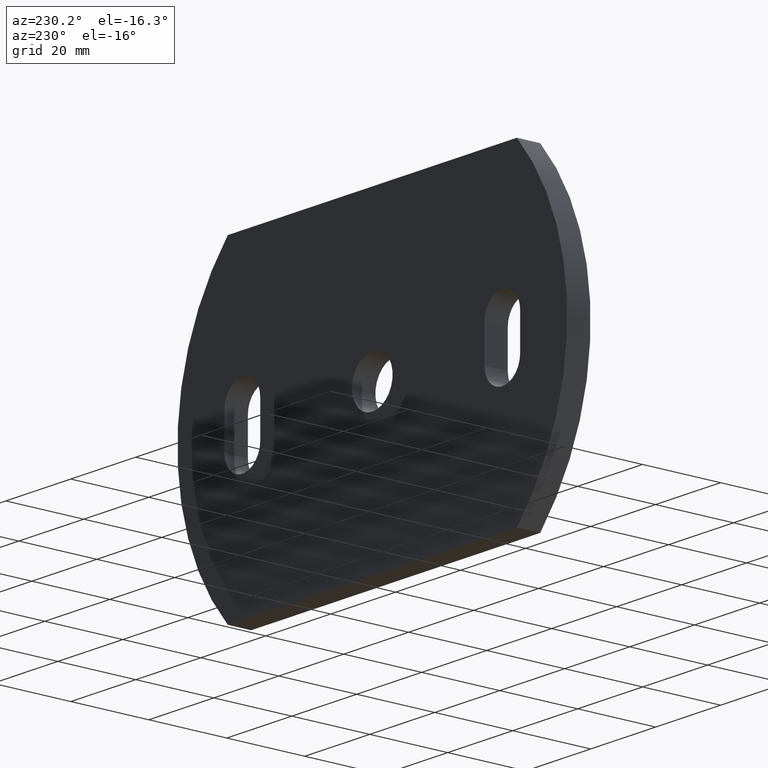
[diagram: clean part render]
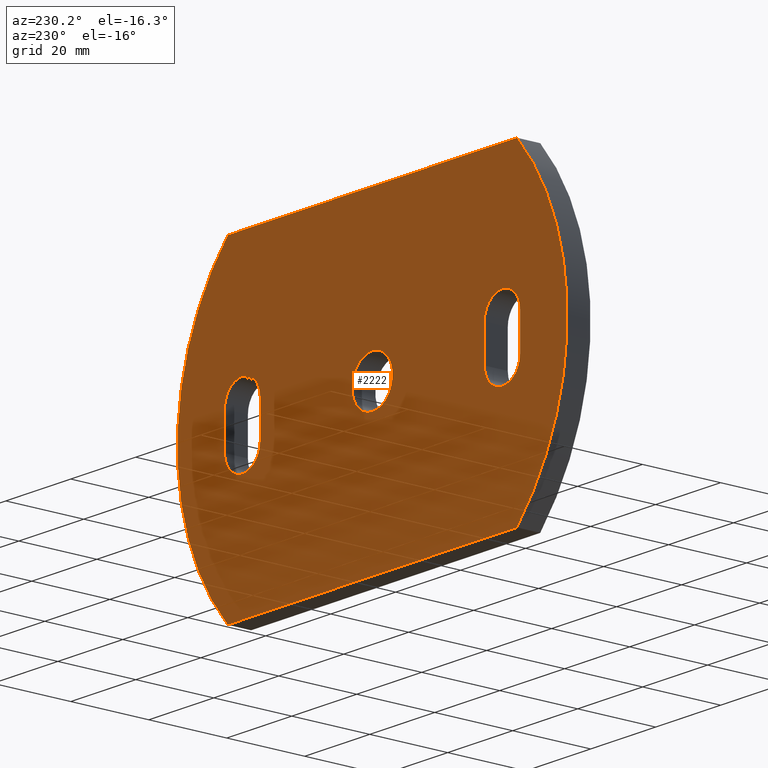
[diagram: same view with one face highlighted and labeled with its STEP entity id]
A machine part, auxiliary view. The second image highlights one B-rep face of the part: STEP entity #2222.
In plain terms, the highlighted planar face has unit normal (0, -1, 0).
Its self-contained STEP definition (entity closure, byte-faithful):
#54 = ORIENTED_EDGE ( 'NONE', *, *, #4868, .F. ) ;
#77 = DIRECTION ( 'NONE',  ( 0.0000000000000000000, 1.000000000000000000, 0.0000000000000000000 ) ) ;
#110 = VECTOR ( 'NONE', #5705, 1000.000000000000000 ) ;
#160 = CARTESIAN_POINT ( 'NONE',  ( -40.00000000000000000, 6.000000000000000000, 4.499999999999992900 ) ) ;
#341 = FACE_BOUND ( 'NONE', #5048, .T. ) ;
#343 = CARTESIAN_POINT ( 'NONE',  ( -34.50000000000000000, 6.000000000000000000, -4.499999999999987600 ) ) ;
#380 = VERTEX_POINT ( 'NONE', #4914 ) ;
#404 = AXIS2_PLACEMENT_3D ( 'NONE', #1839, #1153, #6151 ) ;
#520 = EDGE_CURVE ( 'NONE', #5073, #2334, #8822, .T. ) ;
#537 = CIRCLE ( 'NONE', #6159, 5.499999999999999100 ) ;
#551 = VECTOR ( 'NONE', #8688, 1000.000000000000000 ) ;
#589 = VERTEX_POINT ( 'NONE', #7420 ) ;
#677 = LINE ( 'NONE', #2835, #1119 ) ;
#685 = DIRECTION ( 'NONE',  ( 0.0000000000000000000, 0.0000000000000000000, 1.000000000000000000 ) ) ;
#688 = VERTEX_POINT ( 'NONE', #4692 ) ;
#694 = CARTESIAN_POINT ( 'NONE',  ( -40.00000000000000000, 6.000000000000000000, 9.999999999999991100 ) ) ;
#917 = DIRECTION ( 'NONE',  ( 0.0000000000000000000, 0.0000000000000000000, 1.000000000000000000 ) ) ;
#1005 = DIRECTION ( 'NONE',  ( 1.000000000000000000, 0.0000000000000000000, 2.338953001317043400E-016 ) ) ;
#1083 = VECTOR ( 'NONE', #1005, 1000.000000000000000 ) ;
#1119 = VECTOR ( 'NONE', #2769, 1000.000000000000000 ) ;
#1153 = DIRECTION ( 'NONE',  ( 0.0000000000000000000, -1.000000000000000000, 0.0000000000000000000 ) ) ;
#1304 = CARTESIAN_POINT ( 'NONE',  ( -44.50000000000002100, 6.000000000000000000, 39.99999999999999300 ) ) ;
#1349 = CIRCLE ( 'NONE', #7462, 5.499999999999999100 ) ;
#1423 = CIRCLE ( 'NONE', #3814, 5.499999999999998200 ) ;
#1425 = CARTESIAN_POINT ( 'NONE',  ( 0.0000000000000000000, 6.000000000000000000, 6.250000000000000000 ) ) ;
#1479 = EDGE_CURVE ( 'NONE', #5594, #688, #677, .T. ) ;
#1564 = DIRECTION ( 'NONE',  ( 0.0000000000000000000, 1.000000000000000000, 0.0000000000000000000 ) ) ;
#1580 = FACE_BOUND ( 'NONE', #7411, .T. ) ;
#1582 = VERTEX_POINT ( 'NONE', #6498 ) ;
#1735 = EDGE_CURVE ( 'NONE', #4739, #380, #2690, .T. ) ;
#1745 = EDGE_CURVE ( 'NONE', #589, #1582, #5473, .T. ) ;
#1781 = AXIS2_PLACEMENT_3D ( 'NONE', #6655, #2380, #917 ) ;
#1839 = CARTESIAN_POINT ( 'NONE',  ( 0.6370967741935809100, 6.000000000000000000, 0.0000000000000000000 ) ) ;
#2012 = DIRECTION ( 'NONE',  ( 0.0000000000000000000, 1.000000000000000000, 0.0000000000000000000 ) ) ;
#2020 = CARTESIAN_POINT ( 'NONE',  ( -40.00000000000000000, 6.000000000000000000, -4.500000000000008000 ) ) ;
#2098 = LINE ( 'NONE', #8017, #8460 ) ;
#2112 = DIRECTION ( 'NONE',  ( 0.0000000000000000000, 1.000000000000000000, 0.0000000000000000000 ) ) ;
#2222 = ADVANCED_FACE ( 'NONE', ( #6081, #341, #1580, #5161 ), #5431, .F. ) ;
#2334 = VERTEX_POINT ( 'NONE', #1304 ) ;
#2380 = DIRECTION ( 'NONE',  ( 0.0000000000000000000, 1.000000000000000000, 0.0000000000000000000 ) ) ;
#2415 = CARTESIAN_POINT ( 'NONE',  ( -44.50000000000002100, 6.000000000000000000, 39.99999999999999300 ) ) ;
#2559 = LINE ( 'NONE', #9129, #6585 ) ;
#2690 = CIRCLE ( 'NONE', #3838, 59.36290322580642700 ) ;
#2764 = DIRECTION ( 'NONE',  ( 0.0000000000000000000, 0.0000000000000000000, 1.000000000000000000 ) ) ;
#2769 = DIRECTION ( 'NONE',  ( -0.0000000000000000000, -0.0000000000000000000, -1.000000000000000000 ) ) ;
#2835 = CARTESIAN_POINT ( 'NONE',  ( 45.50000000000000000, 6.000000000000000000, -4.500000000000005300 ) ) ;
#2950 = CARTESIAN_POINT ( 'NONE',  ( 0.6370967741935809100, 6.000000000000000000, 0.0000000000000000000 ) ) ;
#2953 = EDGE_LOOP ( 'NONE', ( #7975, #4009, #5504, #6644, #5563 ) ) ;
#3061 = VERTEX_POINT ( 'NONE', #1425 ) ;
#3240 = ORIENTED_EDGE ( 'NONE', *, *, #4513, .F. ) ;
#3264 = VERTEX_POINT ( 'NONE', #5989 ) ;
#3375 = CARTESIAN_POINT ( 'NONE',  ( 34.50000000000000000, 6.000000000000000000, -4.500000000000003600 ) ) ;
#3419 = AXIS2_PLACEMENT_3D ( 'NONE', #3921, #7486, #4602 ) ;
#3622 = ORIENTED_EDGE ( 'NONE', *, *, #1735, .T. ) ;
#3679 = DIRECTION ( 'NONE',  ( 0.0000000000000000000, 1.000000000000000000, 0.0000000000000000000 ) ) ;
#3744 = DIRECTION ( 'NONE',  ( 0.0000000000000000000, 0.0000000000000000000, 1.000000000000000000 ) ) ;
#3746 = DIRECTION ( 'NONE',  ( 0.0000000000000000000, 0.0000000000000000000, 1.000000000000000000 ) ) ;
#3764 = CARTESIAN_POINT ( 'NONE',  ( 0.0000000000000000000, 6.000000000000000000, 0.0000000000000000000 ) ) ;
#3814 = AXIS2_PLACEMENT_3D ( 'NONE', #2020, #2112, #4214 ) ;
#3838 = AXIS2_PLACEMENT_3D ( 'NONE', #2950, #8629, #4443 ) ;
#3921 = CARTESIAN_POINT ( 'NONE',  ( 40.00000000000000000, 6.000000000000000000, 4.500000000000007100 ) ) ;
#3959 = AXIS2_PLACEMENT_3D ( 'NONE', #6243, #2012, #2764 ) ;
#3971 = EDGE_CURVE ( 'NONE', #3264, #5594, #7170, .T. ) ;
#4009 = ORIENTED_EDGE ( 'NONE', *, *, #7477, .F. ) ;
#4015 = CIRCLE ( 'NONE', #7300, 5.499999999999998200 ) ;
#4032 = ORIENTED_EDGE ( 'NONE', *, *, #8132, .T. ) ;
#4055 = AXIS2_PLACEMENT_3D ( 'NONE', #7900, #1564, #3744 ) ;
#4156 = CARTESIAN_POINT ( 'NONE',  ( 44.49999999999997900, 6.000000000000000000, 40.00000000000001400 ) ) ;
#4209 = VERTEX_POINT ( 'NONE', #343 ) ;
#4214 = DIRECTION ( 'NONE',  ( 0.0000000000000000000, 0.0000000000000000000, 1.000000000000000000 ) ) ;
#4330 = EDGE_CURVE ( 'NONE', #8084, #3264, #7849, .T. ) ;
#4443 = DIRECTION ( 'NONE',  ( 0.0000000000000000000, 0.0000000000000000000, -1.000000000000000000 ) ) ;
#4480 = CARTESIAN_POINT ( 'NONE',  ( -34.50000000000000000, 6.000000000000000000, 4.499999999999987600 ) ) ;
#4488 = ORIENTED_EDGE ( 'NONE', *, *, #6996, .F. ) ;
#4513 = EDGE_CURVE ( 'NONE', #7118, #6349, #1349, .T. ) ;
#4602 = DIRECTION ( 'NONE',  ( 0.0000000000000000000, 0.0000000000000000000, 1.000000000000000000 ) ) ;
#4692 = CARTESIAN_POINT ( 'NONE',  ( 45.50000000000000000, 6.000000000000000000, -4.500000000000005300 ) ) ;
#4739 = VERTEX_POINT ( 'NONE', #4156 ) ;
#4859 = ORIENTED_EDGE ( 'NONE', *, *, #520, .T. ) ;
#4868 = EDGE_CURVE ( 'NONE', #3061, #7686, #5377, .T. ) ;
#4914 = CARTESIAN_POINT ( 'NONE',  ( 44.49999999999999300, 6.000000000000000000, -39.99999999999999300 ) ) ;
#5048 = EDGE_LOOP ( 'NONE', ( #5287, #5644, #8396, #3240, #6302 ) ) ;
#5073 = VERTEX_POINT ( 'NONE', #8102 ) ;
#5092 = CARTESIAN_POINT ( 'NONE',  ( -45.50000000000000000, 6.000000000000000000, -4.499999999999989300 ) ) ;
#5161 = FACE_OUTER_BOUND ( 'NONE', #8946, .T. ) ;
#5245 = CIRCLE ( 'NONE', #3959, 6.250000000000000000 ) ;
#5287 = ORIENTED_EDGE ( 'NONE', *, *, #1745, .F. ) ;
#5317 = DIRECTION ( 'NONE',  ( 0.0000000000000000000, 1.000000000000000000, 0.0000000000000000000 ) ) ;
#5343 = CARTESIAN_POINT ( 'NONE',  ( -40.00000000000000000, 6.000000000000000000, 4.499999999999992900 ) ) ;
#5377 = CIRCLE ( 'NONE', #8422, 6.250000000000000000 ) ;
#5431 = PLANE ( 'NONE',  #404 ) ;
#5473 = LINE ( 'NONE', #5092, #551 ) ;
#5504 = ORIENTED_EDGE ( 'NONE', *, *, #1479, .F. ) ;
#5563 = ORIENTED_EDGE ( 'NONE', *, *, #4330, .F. ) ;
#5594 = VERTEX_POINT ( 'NONE', #9227 ) ;
#5644 = ORIENTED_EDGE ( 'NONE', *, *, #7846, .F. ) ;
#5705 = DIRECTION ( 'NONE',  ( -1.000000000000000000, -0.0000000000000000000, -1.559302000878029000E-016 ) ) ;
#5878 = DIRECTION ( 'NONE',  ( 0.0000000000000000000, 0.0000000000000000000, 1.000000000000000000 ) ) ;
#5989 = CARTESIAN_POINT ( 'NONE',  ( 40.00000000000000000, 6.000000000000000000, 10.00000000000000500 ) ) ;
#6081 = FACE_BOUND ( 'NONE', #2953, .T. ) ;
#6151 = DIRECTION ( 'NONE',  ( 0.0000000000000000000, -0.0000000000000000000, -1.000000000000000000 ) ) ;
#6159 = AXIS2_PLACEMENT_3D ( 'NONE', #5343, #5317, #3746 ) ;
#6243 = CARTESIAN_POINT ( 'NONE',  ( 0.0000000000000000000, 6.000000000000000000, 0.0000000000000000000 ) ) ;
#6302 = ORIENTED_EDGE ( 'NONE', *, *, #7254, .F. ) ;
#6349 = VERTEX_POINT ( 'NONE', #4480 ) ;
#6449 = CARTESIAN_POINT ( 'NONE',  ( 40.00000000000000000, 6.000000000000000000, -4.499999999999992900 ) ) ;
#6498 = CARTESIAN_POINT ( 'NONE',  ( -45.50000000000000000, 6.000000000000000000, 4.499999999999986700 ) ) ;
#6585 = VECTOR ( 'NONE', #8316, 1000.000000000000000 ) ;
#6644 = ORIENTED_EDGE ( 'NONE', *, *, #3971, .F. ) ;
#6655 = CARTESIAN_POINT ( 'NONE',  ( 40.00000000000000000, 6.000000000000000000, 4.500000000000007100 ) ) ;
#6996 = EDGE_CURVE ( 'NONE', #7686, #3061, #5245, .T. ) ;
#7118 = VERTEX_POINT ( 'NONE', #694 ) ;
#7170 = CIRCLE ( 'NONE', #1781, 5.499999999999998200 ) ;
#7254 = EDGE_CURVE ( 'NONE', #1582, #7118, #537, .T. ) ;
#7300 = AXIS2_PLACEMENT_3D ( 'NONE', #6449, #9222, #685 ) ;
#7324 = DIRECTION ( 'NONE',  ( 0.0000000000000000000, 0.0000000000000000000, 1.000000000000000000 ) ) ;
#7375 = CARTESIAN_POINT ( 'NONE',  ( 34.50000000000000000, 6.000000000000000000, 4.500000000000001800 ) ) ;
#7411 = EDGE_LOOP ( 'NONE', ( #54, #4488 ) ) ;
#7420 = CARTESIAN_POINT ( 'NONE',  ( -45.50000000000000000, 6.000000000000000000, -4.499999999999989300 ) ) ;
#7447 = LINE ( 'NONE', #2415, #1083 ) ;
#7462 = AXIS2_PLACEMENT_3D ( 'NONE', #160, #77, #5878 ) ;
#7477 = EDGE_CURVE ( 'NONE', #688, #8692, #4015, .T. ) ;
#7486 = DIRECTION ( 'NONE',  ( 0.0000000000000000000, 1.000000000000000000, 0.0000000000000000000 ) ) ;
#7568 = LINE ( 'NONE', #8491, #110 ) ;
#7686 = VERTEX_POINT ( 'NONE', #8868 ) ;
#7846 = EDGE_CURVE ( 'NONE', #4209, #589, #1423, .T. ) ;
#7849 = CIRCLE ( 'NONE', #3419, 5.499999999999998200 ) ;
#7886 = EDGE_CURVE ( 'NONE', #380, #5073, #7568, .T. ) ;
#7900 = CARTESIAN_POINT ( 'NONE',  ( -0.6370967741935185100, 6.000000000000000000, 0.0000000000000000000 ) ) ;
#7975 = ORIENTED_EDGE ( 'NONE', *, *, #8952, .F. ) ;
#8017 = CARTESIAN_POINT ( 'NONE',  ( -34.50000000000000000, 6.000000000000000000, -4.499999999999987600 ) ) ;
#8084 = VERTEX_POINT ( 'NONE', #7375 ) ;
#8102 = CARTESIAN_POINT ( 'NONE',  ( -44.49999999999998600, 6.000000000000000000, -40.00000000000002800 ) ) ;
#8132 = EDGE_CURVE ( 'NONE', #2334, #4739, #7447, .T. ) ;
#8316 = DIRECTION ( 'NONE',  ( 0.0000000000000000000, 0.0000000000000000000, 1.000000000000000000 ) ) ;
#8396 = ORIENTED_EDGE ( 'NONE', *, *, #9043, .F. ) ;
#8422 = AXIS2_PLACEMENT_3D ( 'NONE', #3764, #3679, #7324 ) ;
#8460 = VECTOR ( 'NONE', #8719, 1000.000000000000000 ) ;
#8491 = CARTESIAN_POINT ( 'NONE',  ( -44.50000000000000000, 6.000000000000000000, -40.00000000000000700 ) ) ;
#8629 = DIRECTION ( 'NONE',  ( 0.0000000000000000000, 1.000000000000000000, -0.0000000000000000000 ) ) ;
#8688 = DIRECTION ( 'NONE',  ( 0.0000000000000000000, 0.0000000000000000000, 1.000000000000000000 ) ) ;
#8692 = VERTEX_POINT ( 'NONE', #3375 ) ;
#8719 = DIRECTION ( 'NONE',  ( -0.0000000000000000000, -0.0000000000000000000, -1.000000000000000000 ) ) ;
#8822 = CIRCLE ( 'NONE', #4055, 59.36290322580647700 ) ;
#8868 = CARTESIAN_POINT ( 'NONE',  ( 7.654042494670957600E-016, 6.000000000000000000, -6.250000000000000000 ) ) ;
#8946 = EDGE_LOOP ( 'NONE', ( #3622, #9176, #4859, #4032 ) ) ;
#8952 = EDGE_CURVE ( 'NONE', #8692, #8084, #2559, .T. ) ;
#9043 = EDGE_CURVE ( 'NONE', #6349, #4209, #2098, .T. ) ;
#9129 = CARTESIAN_POINT ( 'NONE',  ( 34.50000000000000000, 6.000000000000000000, -4.500000000000003600 ) ) ;
#9176 = ORIENTED_EDGE ( 'NONE', *, *, #7886, .T. ) ;
#9222 = DIRECTION ( 'NONE',  ( 0.0000000000000000000, 1.000000000000000000, 0.0000000000000000000 ) ) ;
#9227 = CARTESIAN_POINT ( 'NONE',  ( 45.50000000000000000, 6.000000000000000000, 4.500000000000005300 ) ) ;